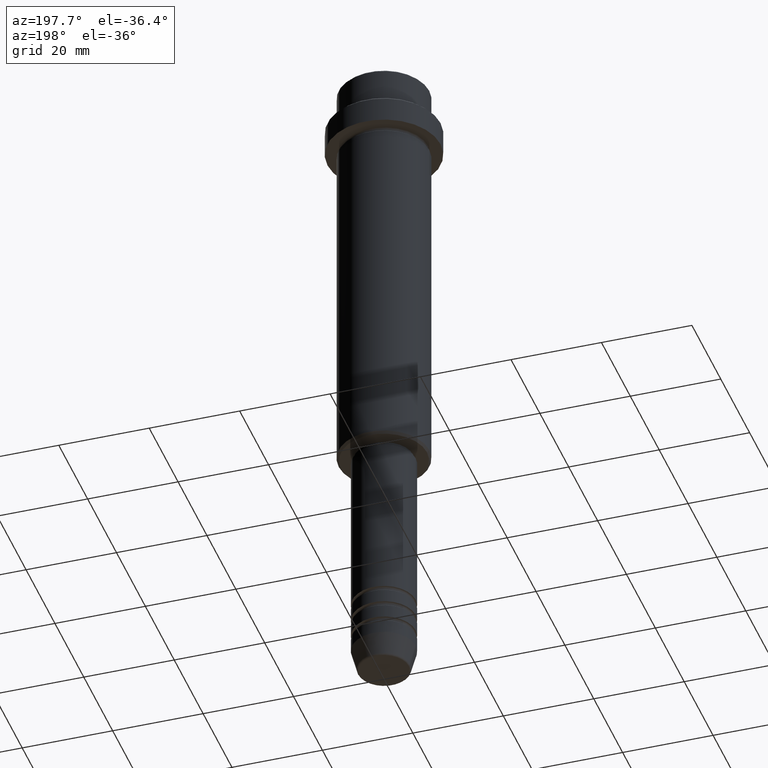
[diagram: clean part render]
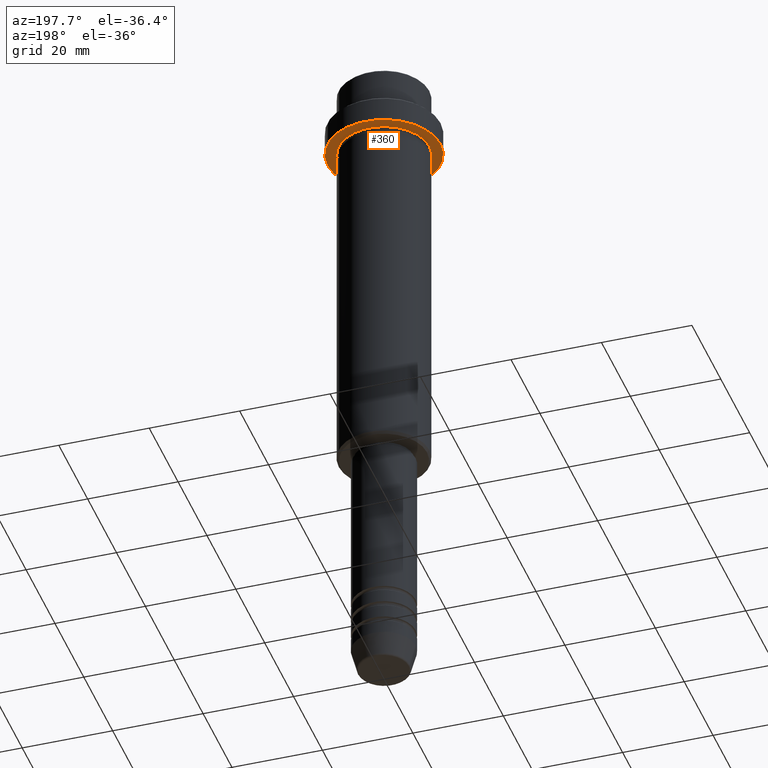
[diagram: same view with one face highlighted and labeled with its STEP entity id]
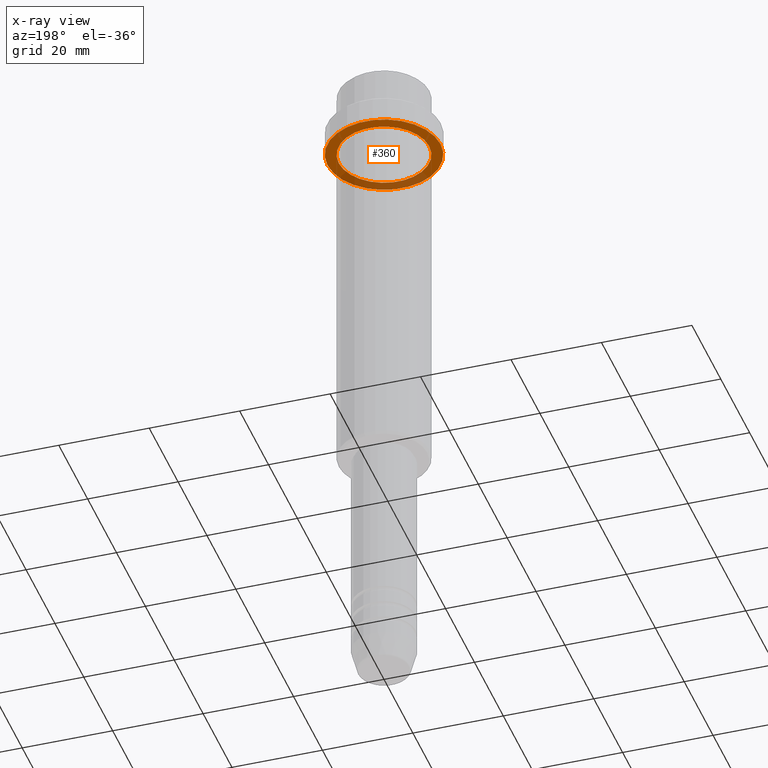
[diagram: x-ray of the same camera — body ghosted, the highlighted face saturated]
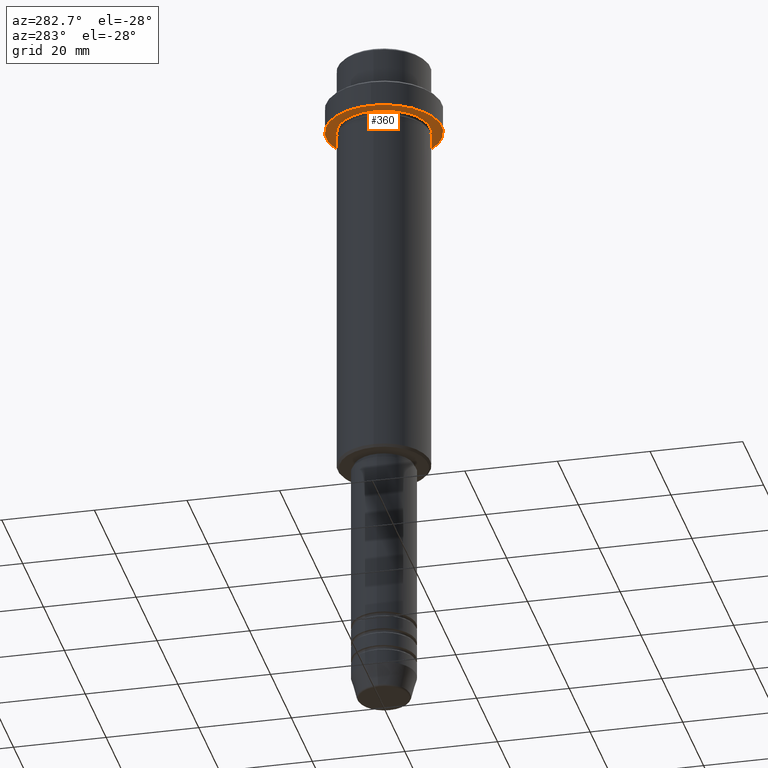
[diagram: same view with one face highlighted and labeled with its STEP entity id]
A machine part, auxiliary view. The second image highlights one B-rep face of the part: STEP entity #360.
The next image is the same camera in x-ray: the body ghosted, the highlighted face saturated — about 28% of this face is hidden behind the body in this view.
A second angle (auxiliary view) of the same face is appended — the face is thin or edge-on in the first view.
In plain terms, the highlighted planar face has unit normal (0, 0, -1).
Its self-contained STEP definition (entity closure, byte-faithful):
#43 = DIRECTION ( 'NONE',  ( -0.000000000000000000, -0.000000000000000000, 1.000000000000000000 ) ) ;
#69 = PLANE ( 'NONE',  #1072 ) ;
#139 = DIRECTION ( 'NONE',  ( 1.000000000000000000, 0.000000000000000000, 0.000000000000000000 ) ) ;
#142 = CARTESIAN_POINT ( 'NONE',  ( -12.50000000000000000, 1.530808498934191521E-15, -15.00000000000000178 ) ) ;
#160 = AXIS2_PLACEMENT_3D ( 'NONE', #301, #625, #416 ) ;
#188 = VERTEX_POINT ( 'NONE', #742 ) ;
#221 = EDGE_LOOP ( 'NONE', ( #1321, #254 ) ) ;
#254 = ORIENTED_EDGE ( 'NONE', *, *, #575, .T. ) ;
#265 = CARTESIAN_POINT ( 'NONE',  ( 0.000000000000000000, 0.000000000000000000, -15.00000000000000178 ) ) ;
#301 = CARTESIAN_POINT ( 'NONE',  ( 0.000000000000000000, 0.000000000000000000, -15.00000000000000000 ) ) ;
#360 = ADVANCED_FACE ( 'NONE', ( #821, #408 ), #69, .T. ) ;
#362 = ORIENTED_EDGE ( 'NONE', *, *, #818, .F. ) ;
#364 = CARTESIAN_POINT ( 'NONE',  ( 9.999999999999994671, 1.224646799147352665E-15, -15.00000000000000000 ) ) ;
#408 = FACE_OUTER_BOUND ( 'NONE', #486, .T. ) ;
#416 = DIRECTION ( 'NONE',  ( -1.000000000000000000, 0.000000000000000000, 0.000000000000000000 ) ) ;
#441 = EDGE_CURVE ( 'NONE', #459, #1359, #1370, .T. ) ;
#459 = VERTEX_POINT ( 'NONE', #1229 ) ;
#486 = EDGE_LOOP ( 'NONE', ( #362, #970 ) ) ;
#506 = DIRECTION ( 'NONE',  ( 1.000000000000000000, 0.000000000000000000, 0.000000000000000000 ) ) ;
#521 = CIRCLE ( 'NONE', #1101, 12.50000000000000000 ) ;
#575 = EDGE_CURVE ( 'NONE', #1359, #459, #771, .T. ) ;
#596 = CARTESIAN_POINT ( 'NONE',  ( 0.000000000000000000, 0.000000000000000000, -15.00000000000000178 ) ) ;
#600 = DIRECTION ( 'NONE',  ( -0.000000000000000000, -0.000000000000000000, 1.000000000000000000 ) ) ;
#608 = DIRECTION ( 'NONE',  ( -0.000000000000000000, -0.000000000000000000, 1.000000000000000000 ) ) ;
#612 = AXIS2_PLACEMENT_3D ( 'NONE', #1016, #43, #916 ) ;
#625 = DIRECTION ( 'NONE',  ( -0.000000000000000000, -0.000000000000000000, 1.000000000000000000 ) ) ;
#742 = CARTESIAN_POINT ( 'NONE',  ( 12.50000000000000000, 0.000000000000000000, -15.00000000000000178 ) ) ;
#771 = CIRCLE ( 'NONE', #160, 9.999999999999994671 ) ;
#780 = VERTEX_POINT ( 'NONE', #142 ) ;
#818 = EDGE_CURVE ( 'NONE', #188, #780, #884, .T. ) ;
#821 = FACE_BOUND ( 'NONE', #221, .T. ) ;
#845 = CARTESIAN_POINT ( 'NONE',  ( 0.000000000000000000, 12.50000000000000000, -15.00000000000000000 ) ) ;
#851 = DIRECTION ( 'NONE',  ( -1.000000000000000000, 0.000000000000000000, -0.000000000000000000 ) ) ;
#884 = CIRCLE ( 'NONE', #1122, 12.50000000000000000 ) ;
#916 = DIRECTION ( 'NONE',  ( -1.000000000000000000, 0.000000000000000000, 0.000000000000000000 ) ) ;
#970 = ORIENTED_EDGE ( 'NONE', *, *, #1220, .F. ) ;
#1016 = CARTESIAN_POINT ( 'NONE',  ( 0.000000000000000000, 0.000000000000000000, -15.00000000000000000 ) ) ;
#1062 = DIRECTION ( 'NONE',  ( 0.000000000000000000, 0.000000000000000000, -1.000000000000000000 ) ) ;
#1072 = AXIS2_PLACEMENT_3D ( 'NONE', #845, #1062, #851 ) ;
#1101 = AXIS2_PLACEMENT_3D ( 'NONE', #265, #600, #139 ) ;
#1122 = AXIS2_PLACEMENT_3D ( 'NONE', #596, #608, #506 ) ;
#1220 = EDGE_CURVE ( 'NONE', #780, #188, #521, .T. ) ;
#1229 = CARTESIAN_POINT ( 'NONE',  ( -9.999999999999994671, 0.000000000000000000, -15.00000000000000000 ) ) ;
#1321 = ORIENTED_EDGE ( 'NONE', *, *, #441, .T. ) ;
#1359 = VERTEX_POINT ( 'NONE', #364 ) ;
#1370 = CIRCLE ( 'NONE', #612, 9.999999999999994671 ) ;